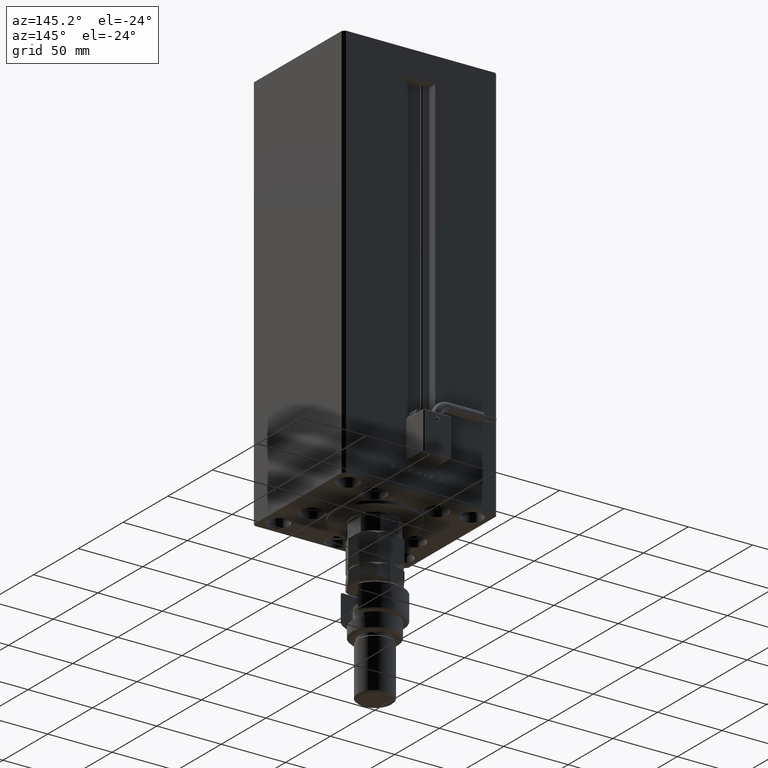
[diagram: clean part render]
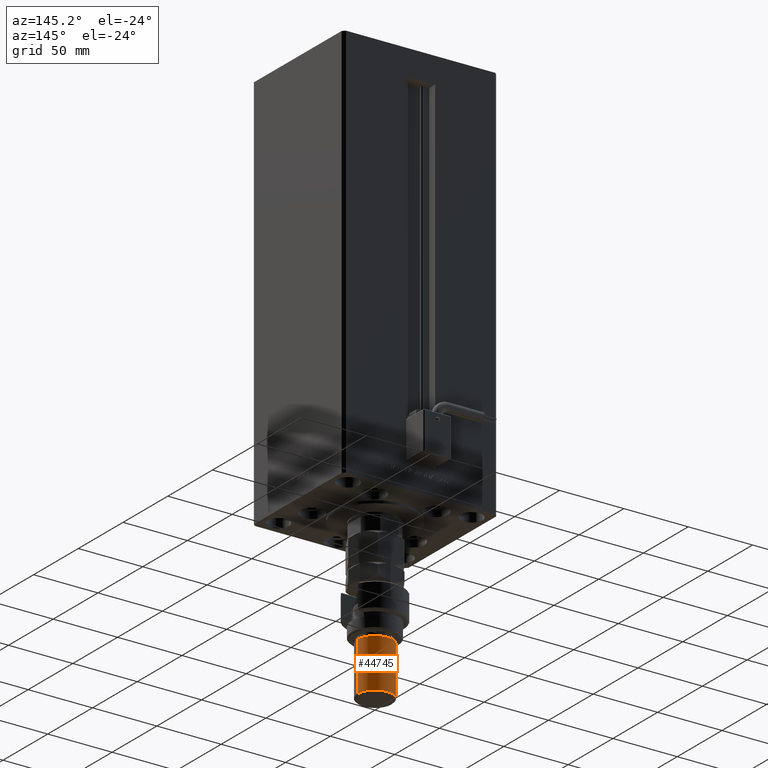
[diagram: same view with one face highlighted and labeled with its STEP entity id]
A machine part, auxiliary view. The second image highlights one B-rep face of the part: STEP entity #44745.
In plain terms, the highlighted cylindrical surface (edge-blend (fillet) strip) has radius 13.5 mm, axis along (0, -0, 1).
Its self-contained STEP definition (entity closure, byte-faithful):
#2422 = CARTESIAN_POINT ( 'NONE',  ( 0.000000000000000000, 0.000000000000000000, 34.99999999999999289 ) ) ;
#7257 = VERTEX_POINT ( 'NONE', #40285 ) ;
#8767 = DIRECTION ( 'NONE',  ( -0.000000000000000000, -0.000000000000000000, -1.000000000000000000 ) ) ;
#10425 = VECTOR ( 'NONE', #8767, 1000.000000000000000 ) ;
#10482 = VERTEX_POINT ( 'NONE', #47848 ) ;
#12734 = ORIENTED_EDGE ( 'NONE', *, *, #50338, .F. ) ;
#13230 = ORIENTED_EDGE ( 'NONE', *, *, #27507, .T. ) ;
#13552 = DIRECTION ( 'NONE',  ( -0.000000000000000000, -0.000000000000000000, -1.000000000000000000 ) ) ;
#16027 = DIRECTION ( 'NONE',  ( -0.000000000000000000, -0.000000000000000000, 1.000000000000000000 ) ) ;
#17170 = CARTESIAN_POINT ( 'NONE',  ( -13.50000000000000000, 0.000000000000000000, 74.00000000000001421 ) ) ;
#18051 = EDGE_CURVE ( 'NONE', #10482, #7257, #26081, .T. ) ;
#21354 = VERTEX_POINT ( 'NONE', #30348 ) ;
#22058 = FACE_OUTER_BOUND ( 'NONE', #24454, .T. ) ;
#22160 = CIRCLE ( 'NONE', #45425, 13.50000000000000000 ) ;
#22875 = CYLINDRICAL_SURFACE ( 'NONE', #28167, 13.50000000000000000 ) ;
#23076 = VECTOR ( 'NONE', #13552, 1000.000000000000000 ) ;
#24454 = EDGE_LOOP ( 'NONE', ( #29214, #13230, #47018, #12734 ) ) ;
#25299 = DIRECTION ( 'NONE',  ( 1.000000000000000000, 0.000000000000000000, 0.000000000000000000 ) ) ;
#25782 = LINE ( 'NONE', #17170, #23076 ) ;
#26081 = CIRCLE ( 'NONE', #50142, 13.50000000000000000 ) ;
#27507 = EDGE_CURVE ( 'NONE', #50180, #10482, #29883, .T. ) ;
#28167 = AXIS2_PLACEMENT_3D ( 'NONE', #51576, #51301, #47391 ) ;
#28269 = DIRECTION ( 'NONE',  ( 1.000000000000000000, 0.000000000000000000, 0.000000000000000000 ) ) ;
#29214 = ORIENTED_EDGE ( 'NONE', *, *, #53077, .T. ) ;
#29883 = LINE ( 'NONE', #38239, #10425 ) ;
#30348 = CARTESIAN_POINT ( 'NONE',  ( -13.50000000000000000, 0.000000000000000000, 73.00000000000001421 ) ) ;
#31398 = CARTESIAN_POINT ( 'NONE',  ( 13.50000000000000000, 1.653273178848926867E-15, 73.00000000000001421 ) ) ;
#32359 = DIRECTION ( 'NONE',  ( 0.000000000000000000, 0.000000000000000000, -1.000000000000000000 ) ) ;
#35742 = CARTESIAN_POINT ( 'NONE',  ( 0.000000000000000000, 0.000000000000000000, 73.00000000000001421 ) ) ;
#38239 = CARTESIAN_POINT ( 'NONE',  ( 13.50000000000000000, 1.653273178848926867E-15, 74.00000000000001421 ) ) ;
#40285 = CARTESIAN_POINT ( 'NONE',  ( -13.50000000000000000, 0.000000000000000000, 34.99999999999999289 ) ) ;
#44745 = ADVANCED_FACE ( 'NONE', ( #22058 ), #22875, .T. ) ;
#45425 = AXIS2_PLACEMENT_3D ( 'NONE', #35742, #32359, #25299 ) ;
#47018 = ORIENTED_EDGE ( 'NONE', *, *, #18051, .T. ) ;
#47391 = DIRECTION ( 'NONE',  ( -1.000000000000000000, 0.000000000000000000, 0.000000000000000000 ) ) ;
#47848 = CARTESIAN_POINT ( 'NONE',  ( 13.50000000000000000, 1.653273178848926867E-15, 34.99999999999999289 ) ) ;
#50142 = AXIS2_PLACEMENT_3D ( 'NONE', #2422, #16027, #28269 ) ;
#50180 = VERTEX_POINT ( 'NONE', #31398 ) ;
#50338 = EDGE_CURVE ( 'NONE', #21354, #7257, #25782, .T. ) ;
#51301 = DIRECTION ( 'NONE',  ( -0.000000000000000000, -0.000000000000000000, -1.000000000000000000 ) ) ;
#51576 = CARTESIAN_POINT ( 'NONE',  ( 0.000000000000000000, 0.000000000000000000, 74.00000000000001421 ) ) ;
#53077 = EDGE_CURVE ( 'NONE', #21354, #50180, #22160, .T. ) ;